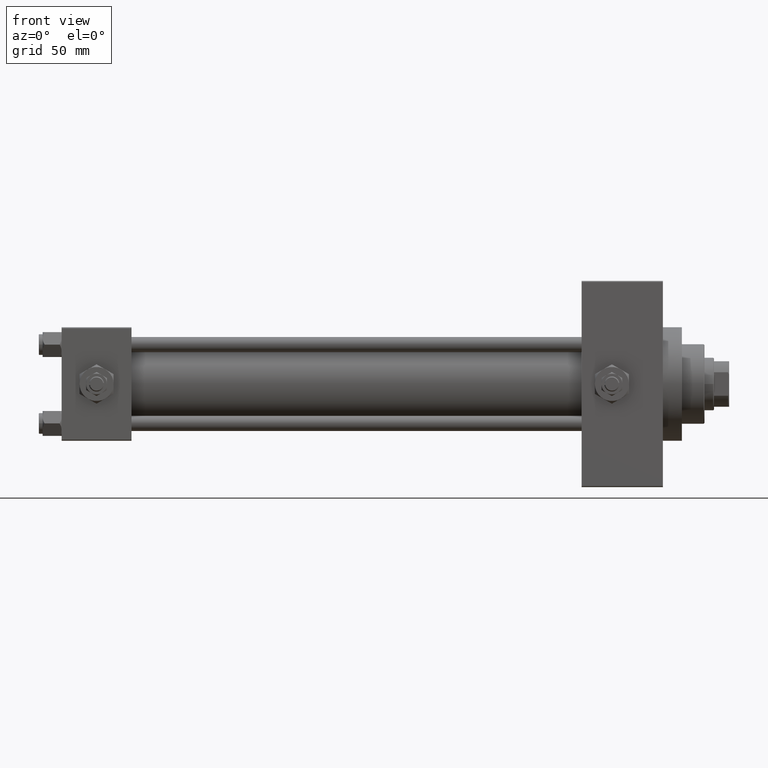
[diagram: clean part render]
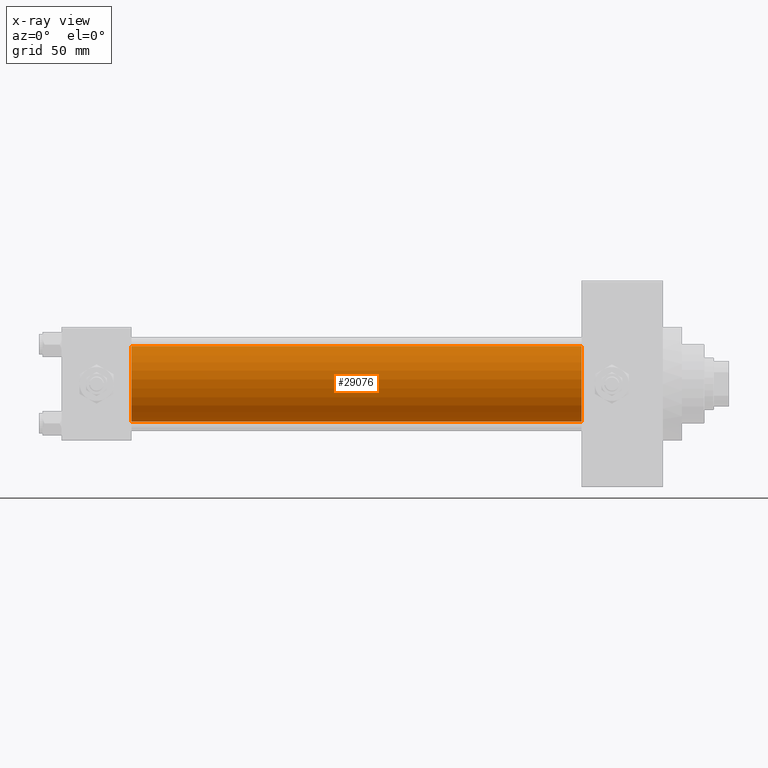
[diagram: x-ray — body ghosted, one internal face saturated and labeled with its STEP entity id]
A machine part, front view, then the same camera in x-ray: the body is ghosted and one INTERNAL B-rep face — a face not visible from any outside direction — is saturated and labeled: STEP entity #29076.
In plain terms, the highlighted cylindrical surface (partial cylindrical patch) has radius 20 mm, axis along (-1, -0, -0).
Its self-contained STEP definition (entity closure, byte-faithful):
#385 = EDGE_CURVE ( 'NONE', #3804, #766, #30397, .T. ) ;
#766 = VERTEX_POINT ( 'NONE', #12901 ) ;
#3699 = LINE ( 'NONE', #15154, #7358 ) ;
#3804 = VERTEX_POINT ( 'NONE', #45109 ) ;
#4426 = DIRECTION ( 'NONE',  ( 1.000000000000000000, 0.000000000000000000, 0.000000000000000000 ) ) ;
#4600 = ORIENTED_EDGE ( 'NONE', *, *, #27234, .F. ) ;
#5656 = AXIS2_PLACEMENT_3D ( 'NONE', #17956, #32403, #39904 ) ;
#5683 = ORIENTED_EDGE ( 'NONE', *, *, #385, .T. ) ;
#7358 = VECTOR ( 'NONE', #29601, 1000.000000000000000 ) ;
#8583 = EDGE_CURVE ( 'NONE', #34734, #766, #27115, .T. ) ;
#9147 = EDGE_LOOP ( 'NONE', ( #34210, #5683, #43852, #4600 ) ) ;
#10247 = VECTOR ( 'NONE', #46102, 1000.000000000000000 ) ;
#10933 = EDGE_CURVE ( 'NONE', #21464, #3804, #13693, .T. ) ;
#12901 = CARTESIAN_POINT ( 'NONE',  ( 37.00000000000000000, -1.527916156705042519E-16, -20.00000000000000000 ) ) ;
#13693 = CIRCLE ( 'NONE', #46327, 20.00000000000000000 ) ;
#14634 = DIRECTION ( 'NONE',  ( 0.000000000000000000, 0.000000000000000000, 1.000000000000000000 ) ) ;
#15154 = CARTESIAN_POINT ( 'NONE',  ( 274.9999999999999432, -2.602085213965210642E-15, 20.00000000000000000 ) ) ;
#17927 = CARTESIAN_POINT ( 'NONE',  ( 37.00000000000000000, -2.602085213965210642E-15, 20.00000000000000000 ) ) ;
#17956 = CARTESIAN_POINT ( 'NONE',  ( 37.00000000000000000, -2.602085213965210642E-15, 0.000000000000000000 ) ) ;
#19387 = CARTESIAN_POINT ( 'NONE',  ( 274.9999999999999432, -2.602085213965210642E-15, 0.000000000000000000 ) ) ;
#21464 = VERTEX_POINT ( 'NONE', #47582 ) ;
#27115 = CIRCLE ( 'NONE', #5656, 20.00000000000000000 ) ;
#27234 = EDGE_CURVE ( 'NONE', #21464, #34734, #3699, .T. ) ;
#29076 = ADVANCED_FACE ( 'NONE', ( #40312 ), #48532, .F. ) ;
#29601 = DIRECTION ( 'NONE',  ( -1.000000000000000000, -0.000000000000000000, -0.000000000000000000 ) ) ;
#30397 = LINE ( 'NONE', #30879, #10247 ) ;
#30879 = CARTESIAN_POINT ( 'NONE',  ( 274.9999999999999432, -1.527916156705042519E-16, -20.00000000000000000 ) ) ;
#31556 = DIRECTION ( 'NONE',  ( 0.000000000000000000, 0.000000000000000000, -1.000000000000000000 ) ) ;
#32403 = DIRECTION ( 'NONE',  ( 1.000000000000000000, 0.000000000000000000, 0.000000000000000000 ) ) ;
#34210 = ORIENTED_EDGE ( 'NONE', *, *, #10933, .T. ) ;
#34734 = VERTEX_POINT ( 'NONE', #17927 ) ;
#35287 = AXIS2_PLACEMENT_3D ( 'NONE', #37068, #37306, #14634 ) ;
#37068 = CARTESIAN_POINT ( 'NONE',  ( 274.9999999999999432, -2.602085213965210642E-15, 0.000000000000000000 ) ) ;
#37306 = DIRECTION ( 'NONE',  ( -1.000000000000000000, -0.000000000000000000, -0.000000000000000000 ) ) ;
#39904 = DIRECTION ( 'NONE',  ( 0.000000000000000000, 0.000000000000000000, -1.000000000000000000 ) ) ;
#40312 = FACE_OUTER_BOUND ( 'NONE', #9147, .T. ) ;
#43852 = ORIENTED_EDGE ( 'NONE', *, *, #8583, .F. ) ;
#45109 = CARTESIAN_POINT ( 'NONE',  ( 274.9999999999999432, -1.527916156705042519E-16, -20.00000000000000000 ) ) ;
#46102 = DIRECTION ( 'NONE',  ( -1.000000000000000000, -0.000000000000000000, -0.000000000000000000 ) ) ;
#46327 = AXIS2_PLACEMENT_3D ( 'NONE', #19387, #4426, #31556 ) ;
#47582 = CARTESIAN_POINT ( 'NONE',  ( 274.9999999999999432, -2.602085213965210642E-15, 20.00000000000000000 ) ) ;
#48532 = CYLINDRICAL_SURFACE ( 'NONE', #35287, 20.00000000000000000 ) ;